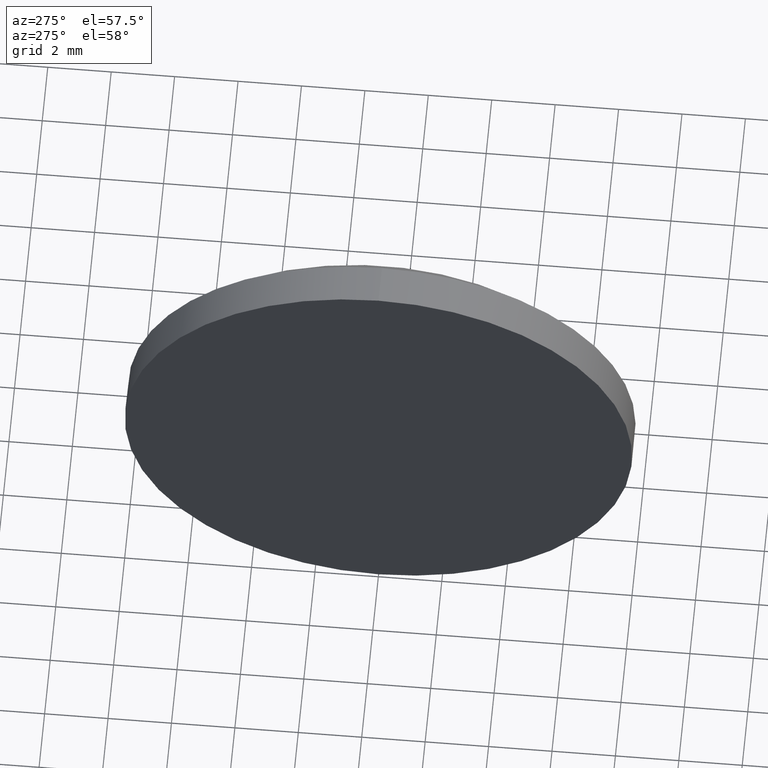
[diagram: clean part render]
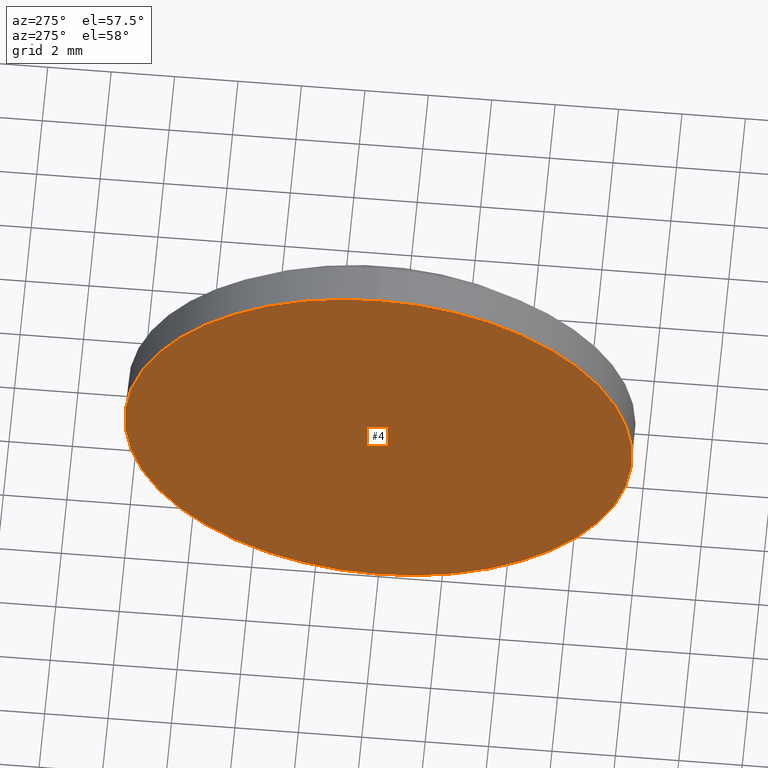
[diagram: same view with one face highlighted and labeled with its STEP entity id]
A machine part, auxiliary view. The second image highlights one B-rep face of the part: STEP entity #4.
In plain terms, the highlighted planar face has unit normal (1, 0, 0).
Its self-contained STEP definition (entity closure, byte-faithful):
#4 = ADVANCED_FACE ( 'NONE', ( #39 ), #73, .F. ) ;
#22 = DIRECTION ( 'NONE',  ( 0.0000000000000000000, 0.0000000000000000000, 1.000000000000000000 ) ) ;
#27 = AXIS2_PLACEMENT_3D ( 'NONE', #163, #47, #104 ) ;
#29 = ORIENTED_EDGE ( 'NONE', *, *, #184, .T. ) ;
#30 = AXIS2_PLACEMENT_3D ( 'NONE', #44, #71, #142 ) ;
#34 = DIRECTION ( 'NONE',  ( -1.000000000000000000, -0.0000000000000000000, -0.0000000000000000000 ) ) ;
#39 = FACE_OUTER_BOUND ( 'NONE', #126, .T. ) ;
#40 = AXIS2_PLACEMENT_3D ( 'NONE', #105, #34, #22 ) ;
#44 = CARTESIAN_POINT ( 'NONE',  ( 545.8700761901106900, 139.9861653284031000, 0.0000000000000000000 ) ) ;
#47 = DIRECTION ( 'NONE',  ( -1.000000000000000000, -0.0000000000000000000, -0.0000000000000000000 ) ) ;
#71 = DIRECTION ( 'NONE',  ( 1.000000000000000000, 0.0000000000000000000, 0.0000000000000000000 ) ) ;
#73 = PLANE ( 'NONE',  #30 ) ;
#93 = VERTEX_POINT ( 'NONE', #128 ) ;
#104 = DIRECTION ( 'NONE',  ( 0.0000000000000000000, 0.0000000000000000000, 1.000000000000000000 ) ) ;
#105 = CARTESIAN_POINT ( 'NONE',  ( 545.8700761901106900, 139.9861653284031000, 0.0000000000000000000 ) ) ;
#122 = EDGE_CURVE ( 'NONE', #124, #93, #125, .T. ) ;
#124 = VERTEX_POINT ( 'NONE', #157 ) ;
#125 = CIRCLE ( 'NONE', #40, 8.000000000000007100 ) ;
#126 = EDGE_LOOP ( 'NONE', ( #29, #134 ) ) ;
#128 = CARTESIAN_POINT ( 'NONE',  ( 545.8700761901106900, 139.9861653284031000, 8.000000000000007100 ) ) ;
#134 = ORIENTED_EDGE ( 'NONE', *, *, #122, .T. ) ;
#142 = DIRECTION ( 'NONE',  ( 0.0000000000000000000, 0.0000000000000000000, -1.000000000000000000 ) ) ;
#154 = CIRCLE ( 'NONE', #27, 8.000000000000007100 ) ;
#157 = CARTESIAN_POINT ( 'NONE',  ( 545.8700761901106900, 139.9861653284031000, -8.000000000000007100 ) ) ;
#163 = CARTESIAN_POINT ( 'NONE',  ( 545.8700761901106900, 139.9861653284031000, 0.0000000000000000000 ) ) ;
#184 = EDGE_CURVE ( 'NONE', #93, #124, #154, .T. ) ;